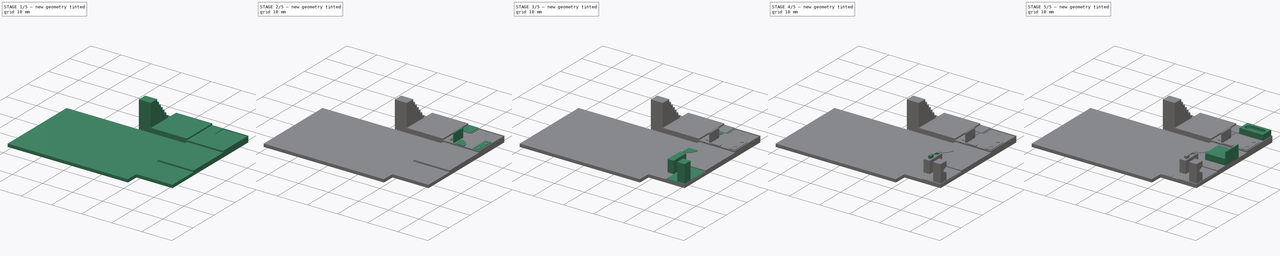
[diagram: build sequence overview — one tinted view per stage of 5, left to right]
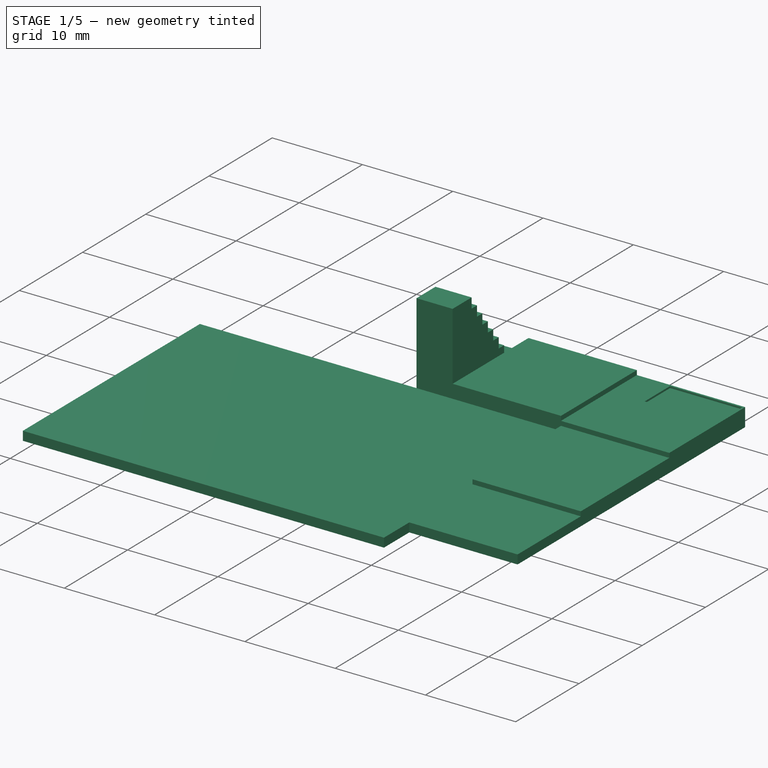
[diagram: stage 1 of 5 — iso view after this stage's code; geometry added in this stage tinted green]
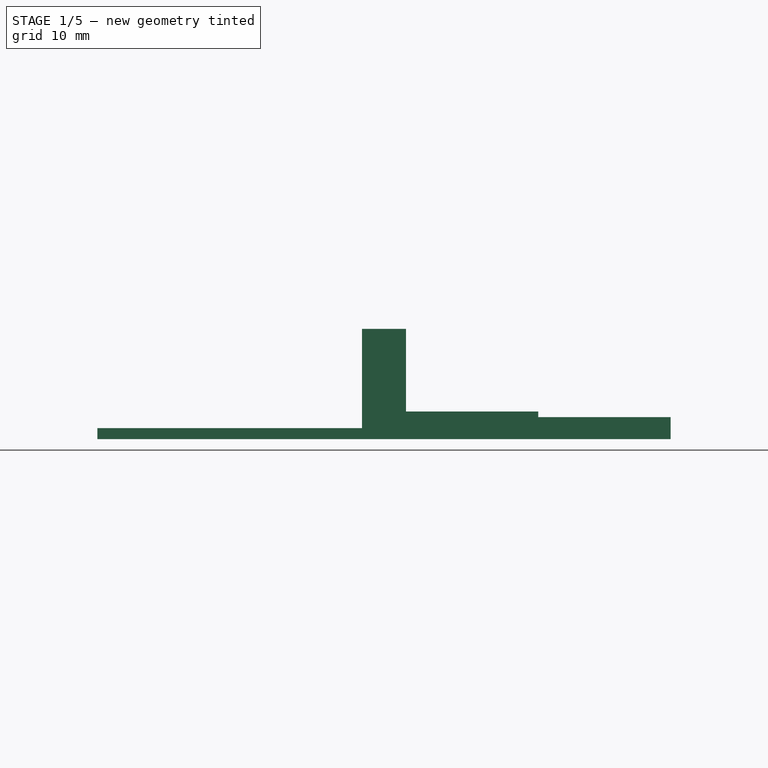
[diagram: stage 1 of 5 — front view after this stage's code; geometry added in this stage tinted green]
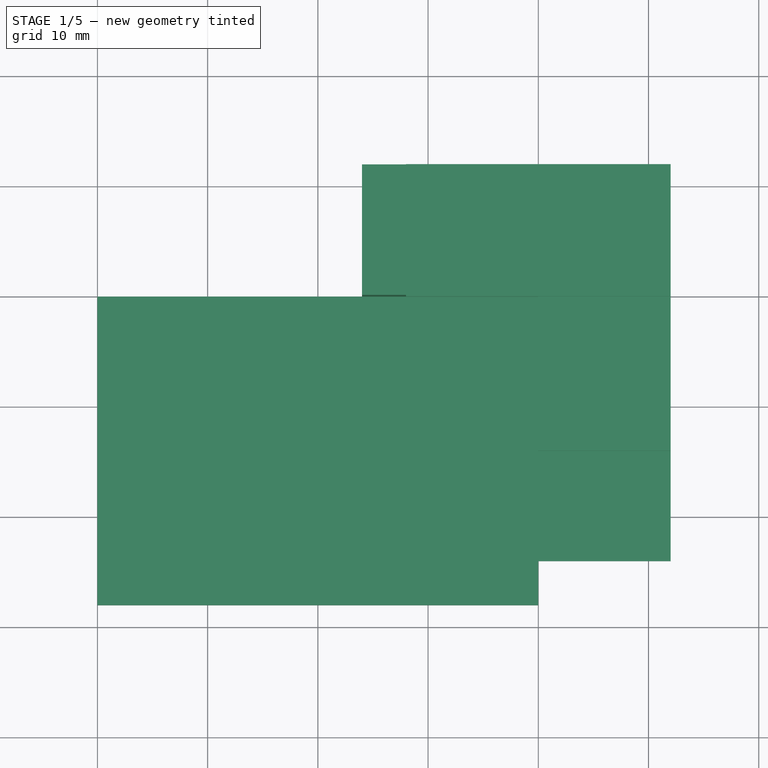
[diagram: stage 1 of 5 — top view after this stage's code; geometry added in this stage tinted green]
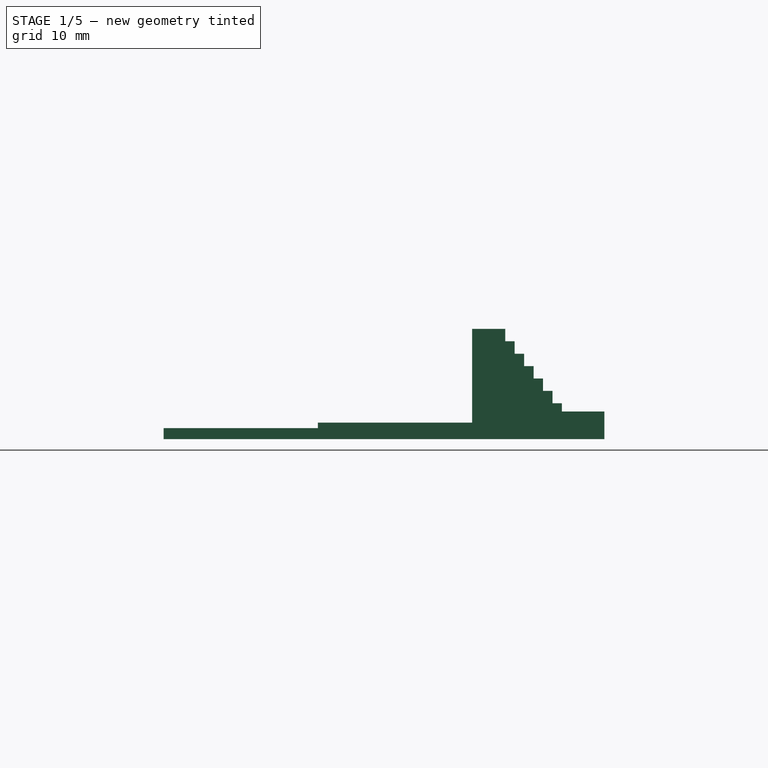
[diagram: stage 1 of 5 — right view after this stage's code; geometry added in this stage tinted green]
FCSTD DOCUMENT  (FreeCAD 0.19R)
Label: Addition1
License: All rights reserved
LicenseURL: http://en.wikipedia.org/wiki/All_rights_reserved
objects: Sketcher::SketchObject×28, PartDesign::Pad×21, PartDesign::Pocket×7, PartDesign::Fillet×1, PartDesign::Body×1
note: 87 computed .brp shape members not serialized (recipe doc carries the construction recipe); baked Part::Feature solids carry a one-line shape summary decoded from their .brp

FEATURE [Sketcher::SketchObject] Sketch
  FullyConstrained = true
  MapMode = 5
  Support = -> [XY_Plane]
  sketch-geometry (8):
    g0: LineSegment StartX=0 StartY=-28 StartZ=0 EndX=-40 EndY=-28 EndZ=0
    g1: LineSegment StartX=-40 StartY=-28 StartZ=0 EndX=-40 EndY=0 EndZ=0
    g2: LineSegment StartX=-40 StartY=0 StartZ=0 EndX=-16 EndY=0 EndZ=0
    g3: LineSegment StartX=-16 StartY=0 StartZ=0 EndX=-16 EndY=12 EndZ=0
    g4: LineSegment StartX=-16 StartY=12 StartZ=0 EndX=12 EndY=12 EndZ=0
    g5: LineSegment StartX=12 StartY=12 StartZ=0 EndX=12 EndY=-24 EndZ=0
    g6: LineSegment StartX=12 StartY=-24 StartZ=0 EndX=0 EndY=-24 EndZ=0
    g7: LineSegment StartX=0 StartY=-24 StartZ=0 EndX=0 EndY=-28 EndZ=0
  constraints (24):
    c: Coincident(g0,g1)
    c: Horizontal(g0)
    c: Vertical(g1)
    c: DistanceX(g1) = -40
    c: DistanceY(g0) = -28
    c: Coincident(g1,g2)
    c: PointOnObject(g2,g-1)
    c: Horizontal(g2)
    c: Coincident(g2,g3)
    c: Vertical(g3)
    c: Coincident(g3,g4)
    c: Horizontal(g4)
    c: Coincident(g4,g5)
    c: Vertical(g5)
    c: Coincident(g5,g6)
    c: PointOnObject(g6,g-2)
    c: Coincident(g6,g7)
    c: Coincident(g7,g0)
    c: Vertical(g7)
    c: Horizontal(g6)
    c: Distance(g6) = 12
    c: Distance(g3) = 12
    c: DistanceY(g6) = -24
    c: DistanceX(g2) = -16
FEATURE [PartDesign::Pad] Pad  label="foundation"
  Direction = (1,1,1)
  Length = 1
  Length2 = 100
  Profile = -> Sketch
  Type = 0
FEATURE [Sketcher::SketchObject] Sketch001
  ExternalGeometry = -> [Pad]
  FullyConstrained = true
  MapMode = 5
  Placement = pos=(0,0,1) rot=(0,0,1;0rad)
  Support = -> [Pad]
  sketch-geometry (4):
    g0: LineSegment StartX=12 StartY=12 StartZ=0 EndX=0 EndY=12 EndZ=0
    g1: LineSegment StartX=0 StartY=12 StartZ=0 EndX=0 EndY=0 EndZ=0
    g2: LineSegment StartX=0 StartY=0 StartZ=0 EndX=12 EndY=0 EndZ=0
    g3: LineSegment StartX=12 StartY=0 StartZ=0 EndX=12 EndY=12 EndZ=0
  constraints (11):
    c: Coincident(g0,g1)
    c: Coincident(g1,g2)
    c: Coincident(g2,g3)
    c: Coincident(g3,g0)
    c: Horizontal(g0)
    c: Horizontal(g2)
    c: Vertical(g1)
    c: Vertical(g3)
    c: Coincident(g0,g-4)
    c: PointOnObject(g1,g-1)
    c: Distance(g2) = 12
FEATURE [PartDesign::Pad] Pad001  label="addition1"
  BaseFeature = -> Pad
  Direction = (1,1,1)
  Length = 1
  Length2 = 100
  Profile = -> Sketch001
  Type = 0
FEATURE [Sketcher::SketchObject] Sketch002
  FullyConstrained = true
  MapMode = 5
  Placement = pos=(0,0,1) rot=(0,0,1;0rad)
  Support = -> [Pad001]
  sketch-geometry (4):
    g0: LineSegment StartX=0 StartY=0 StartZ=0 EndX=12 EndY=0 EndZ=0
    g1: LineSegment StartX=12 StartY=0 StartZ=0 EndX=12 EndY=-14 EndZ=0
    g2: LineSegment StartX=12 StartY=-14 StartZ=0 EndX=0 EndY=-14 EndZ=0
    g3: LineSegment StartX=0 StartY=-14 StartZ=0 EndX=0 EndY=0 EndZ=0
  constraints (11):
    c: Coincident(g0,g1)
    c: Coincident(g1,g2)
    c: Coincident(g2,g3)
    c: Coincident(g3,g0)
    c: Horizontal(g0)
    c: Horizontal(g2)
    c: Vertical(g1)
    c: Vertical(g3)
    c: Coincident(g0,g-1)
    c: Distance(g2) = 12
    c: Distance(g1) = 14
FEATURE [PartDesign::Pad] Pad002  label="Room"
  BaseFeature = -> Pad001
  Direction = (1,1,1)
  Length = 0.5
  Length2 = 100
  Profile = -> Sketch002
  Type = 0
FEATURE [Sketcher::SketchObject] Sketch003
  FullyConstrained = true
  MapMode = 5
  Placement = pos=(0,0,1) rot=(0,0,1;0rad)
  Support = -> [Pad002]
  sketch-geometry (4):
    g0: LineSegment StartX=-12 StartY=12 StartZ=0 EndX=0 EndY=12 EndZ=0
    g1: LineSegment StartX=0 StartY=12 StartZ=0 EndX=0 EndY=0 EndZ=0
    g2: LineSegment StartX=0 StartY=0 StartZ=0 EndX=-12 EndY=0 EndZ=0
    g3: LineSegment StartX=-12 StartY=0 StartZ=0 EndX=-12 EndY=12 EndZ=0
  constraints (12):
    c: Coincident(g0,g1)
    c: Coincident(g1,g2)
    c: Coincident(g2,g3)
    c: Coincident(g3,g0)
    c: Horizontal(g0)
    c: Horizontal(g2)
    c: Vertical(g1)
    c: Vertical(g3)
    c: DistanceX(g0) = -12
    c: DistanceX(g1) = 0
    c: DistanceY(g2) = 0
    c: Distance(g3) = 12
FEATURE [PartDesign::Pad] Pad003  label="office"
  BaseFeature = -> Pad002
  Direction = (1,1,1)
  Length = 1.5
  Length2 = 100
  Profile = -> Sketch003
  Type = 0
FEATURE [Sketcher::SketchObject] Sketch004
  FullyConstrained = true
  MapMode = 5
  Placement = pos=(-16,0,0) rot=(0.57735,-0.57735,-0.57735;2.0944rad)
  Support = -> [Pad003]
  sketch-geometry (20):
    g0: LineSegment StartX=-12 StartY=0 StartZ=0 EndX=-12 EndY=1 EndZ=0
    g1: LineSegment StartX=-12 StartY=1 StartZ=0 EndX=-9 EndY=1 EndZ=0
    g2: LineSegment StartX=-9 StartY=1 StartZ=0 EndX=-9 EndY=2.125 EndZ=0
    g3: LineSegment StartX=-9 StartY=2.125 StartZ=0 EndX=-8.14286 EndY=2.125 EndZ=0
    g4: LineSegment StartX=-8.14286 StartY=2.125 StartZ=0 EndX=-8.14286 EndY=3.25 EndZ=0
    g5: LineSegment StartX=-8.14286 StartY=3.25 StartZ=0 EndX=-7.28571 EndY=3.25 EndZ=0
    g6: LineSegment StartX=-7.28571 StartY=3.25 StartZ=0 EndX=-7.28571 EndY=4.375 EndZ=0
    g7: LineSegment StartX=-7.28571 StartY=4.375 StartZ=0 EndX=-6.42857 EndY=4.375 EndZ=0
    g8: LineSegment StartX=-6.42857 StartY=4.375 StartZ=0 EndX=-6.42857 EndY=5.5 EndZ=0
    g9: LineSegment StartX=-6.42857 StartY=5.5 StartZ=0 EndX=-5.57143 EndY=5.5 EndZ=0
    g10: LineSegment StartX=-5.57143 StartY=5.5 StartZ=0 EndX=-5.57143 EndY=6.625 EndZ=0
    g11: LineSegment StartX=-5.57143 StartY=6.625 StartZ=0 EndX=-4.71429 EndY=6.625 EndZ=0
    g12: LineSegment StartX=-4.71429 StartY=6.625 StartZ=0 EndX=-4.71429 EndY=7.75 EndZ=0
    g13: LineSegment StartX=-4.71429 StartY=7.75 StartZ=0 EndX=-3.85714 EndY=7.75 EndZ=0
    g14: LineSegment StartX=-3.85714 StartY=7.75 StartZ=0 EndX=-3.85714 EndY=8.875 EndZ=0
    g15: LineSegment StartX=-3.85714 StartY=8.875 StartZ=0 EndX=-3 EndY=8.875 EndZ=0
    g16: LineSegment StartX=-3 StartY=8.875 StartZ=0 EndX=-3 EndY=10 EndZ=0
    g17: LineSegment StartX=-3 StartY=10 StartZ=0 EndX=0 EndY=10 EndZ=0
    g18: LineSegment StartX=0 StartY=10 StartZ=0 EndX=0 EndY=0 EndZ=0
    g19: LineSegment StartX=0 StartY=0 StartZ=0 EndX=-12 EndY=0 EndZ=0
  constraints (59):
    c: PointOnObject(g0,g-1)
    c: Coincident(g0,g1)
    c: Coincident(g1,g2)
    c: Coincident(g2,g3)
    c: Coincident(g3,g4)
    c: Vertical(g4)
    c: Coincident(g4,g5)
    c: Horizontal(g5)
    c: Coincident(g5,g6)
    c: Coincident(g6,g7)
    c: Coincident(g7,g8)
    c: Coincident(g8,g9)
    c: Coincident(g9,g10)
    c: Coincident(g10,g11)
    c: Horizontal(g11)
    c: Coincident(g11,g12)
    c: Coincident(g12,g13)
    c: Coincident(g13,g14)
    c: Coincident(g14,g15)
    c: Coincident(g15,g16)
    c: Coincident(g16,g17)
    c: PointOnObject(g17,g-2)
    c: Coincident(g17,g18)
    c: Coincident(g18,g-1)
    c: Coincident(g18,g19)
    c: Coincident(g19,g0)
    c: DistanceY(g17) = 10
    c: Horizontal(g3)
    c: Horizontal(g7)
    c: Horizontal(g9)
    c: Horizontal(g13)
    c: Horizontal(g15)
    c: Vertical(g6)
    c: Vertical(g8)
    c: Vertical(g12)
    c: Vertical(g10)
    c: Vertical(g14)
    c: Vertical(g16)
    c: Vertical(g2)
    c: Equal(g2,g4)
    c: Equal(g4,g6)
    c: Equal(g6,g8)
    c: Equal(g8,g10)
    c: Equal(g10,g12)
    c: Equal(g12,g14)
    c: Equal(g14,g16)
    c: Distance(g17) = 3
    c: Equal(g3,g5)
    c: Equal(g5,g7)
    c: Equal(g7,g9)
    c: Equal(g9,g11)
    c: Equal(g11,g13)
    c: Equal(g13,g15)
    c: Horizontal(g1)
    c: Horizontal(g17)
    c: Distance(g1) = 3
    c: Vertical(g0)
    c: Distance(g0) = 1
    c: DistanceX(g0) = -12
FEATURE [PartDesign::Pad] Pad004
  BaseFeature = -> Pad003
  Direction = (1,1,1)
  Length = 4
  Length2 = 100
  Profile = -> Sketch004
  Reversed = true
  Type = 0
FEATURE [Sketcher::SketchObject] Sketch005
  FullyConstrained = false
  MapMode = 5
  Placement = pos=(0,0,2) rot=(0,0,1;0rad)
  Support = -> [Pad004]
  sketch-geometry (4):
    g0: LineSegment StartX=3.82447 StartY=11.7945 StartZ=0 EndX=11.8245 EndY=11.7945 EndZ=0
    g1: LineSegment StartX=11.8245 StartY=11.7945 StartZ=0 EndX=11.8245 EndY=7.79448 EndZ=0
    g2: LineSegment StartX=11.8245 StartY=7.79448 StartZ=0 EndX=3.82447 EndY=7.79448 EndZ=0
    g3: LineSegment StartX=3.82447 StartY=7.79448 StartZ=0 EndX=3.82447 EndY=11.7945 EndZ=0
  constraints (10):
    c: Coincident(g0,g1)
    c: Coincident(g1,g2)
    c: Coincident(g2,g3)
    c: Coincident(g3,g0)
    c: Horizontal(g0)
    c: Horizontal(g2)
    c: Vertical(g1)
    c: Vertical(g3)
    c: Distance(g0) = 8
    c: Distance(g3) = 4
FEATURE [PartDesign::Pocket] Pocket
  BaseFeature = -> Pad004
  Length = 0.2
  Length2 = 100
  Profile = -> Sketch005
  Type = 0
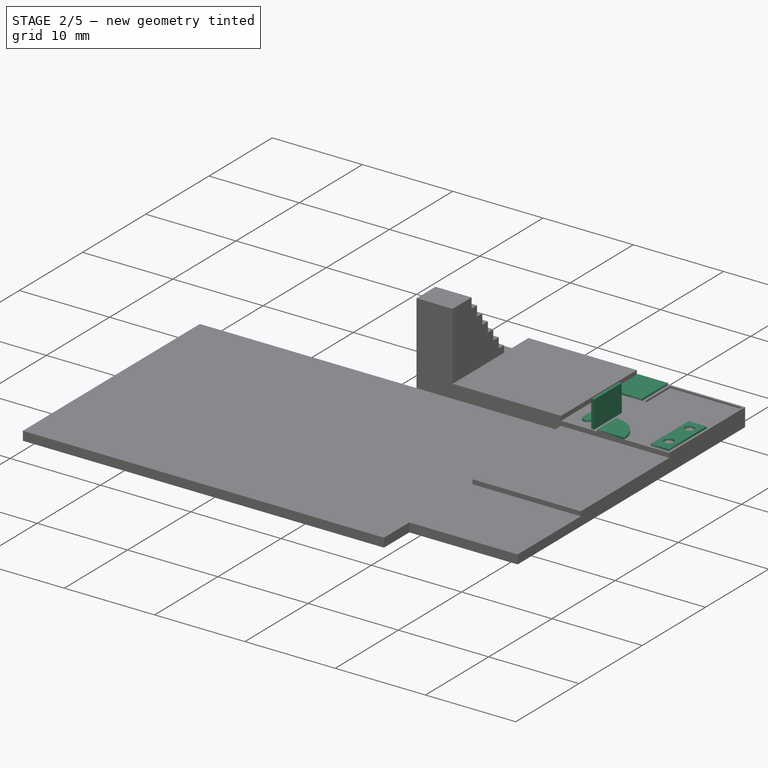
[diagram: stage 2 of 5 — iso view after this stage's code; geometry added in this stage tinted green]
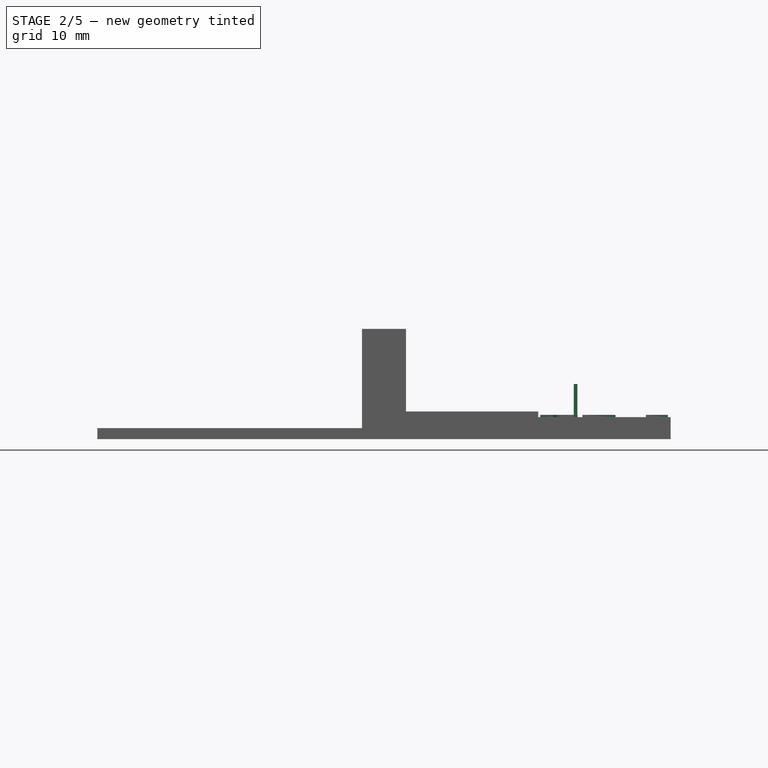
[diagram: stage 2 of 5 — front view after this stage's code; geometry added in this stage tinted green]
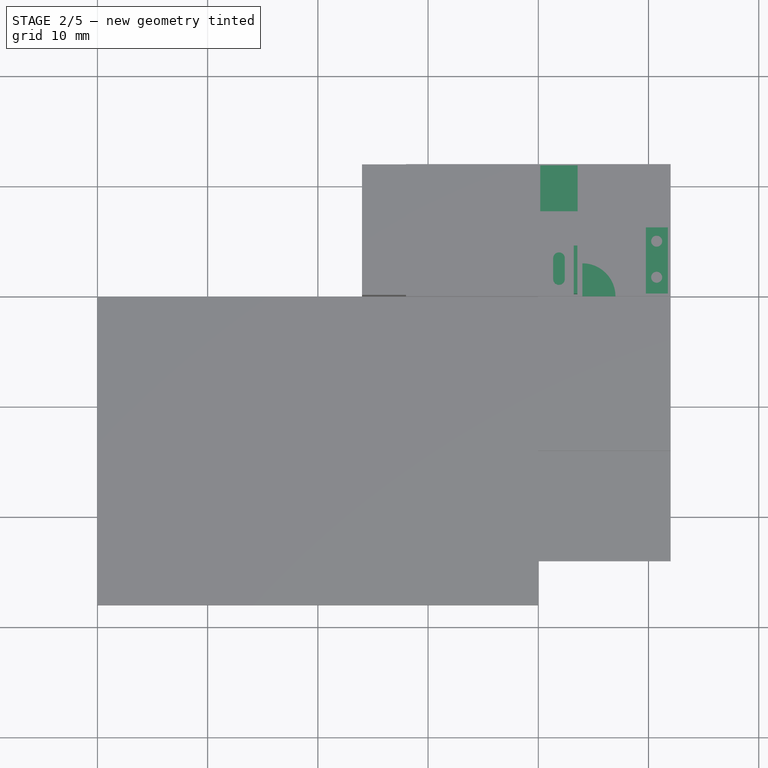
[diagram: stage 2 of 5 — top view after this stage's code; geometry added in this stage tinted green]
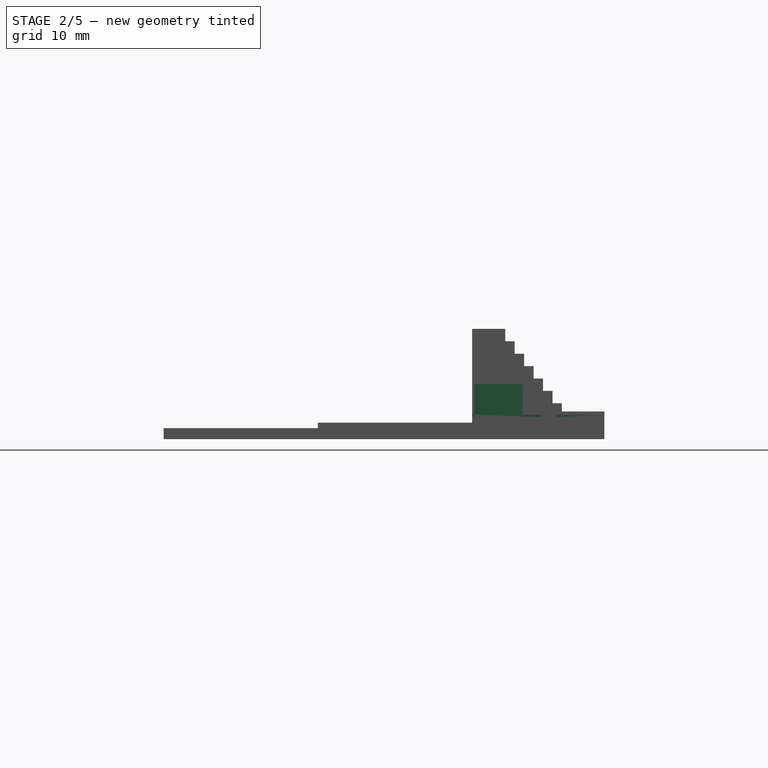
[diagram: stage 2 of 5 — right view after this stage's code; geometry added in this stage tinted green]
FEATURE [Sketcher::SketchObject] Sketch006
  FullyConstrained = true
  MapMode = 5
  Placement = pos=(0,0,2) rot=(0,0,1;0rad)
  Support = -> [Pocket]
  sketch-geometry (3):
    g0: ArcOfCircle CenterX=4 CenterY=0 CenterZ=0 NormalX=0 NormalY=0 NormalZ=1 AngleXU=0 Radius=3 StartAngle=0 EndAngle=1.5708
    g1: LineSegment StartX=4 StartY=3 StartZ=0 EndX=4 EndY=0 EndZ=0
    g2: LineSegment StartX=4 StartY=0 StartZ=0 EndX=7 EndY=0 EndZ=0
  constraints (9):
    c: PointOnObject(g0,g-1)
    c: Coincident(g0,g1)
    c: Coincident(g1,g2)
    c: Coincident(g2,g0)
    c: Coincident(g1,g0)
    c: Vertical(g1)
    c: Horizontal(g2)
    c: DistanceX(g0) = 4
    c: Distance(g2) = 3
FEATURE [PartDesign::Pad] Pad005
  BaseFeature = -> Pocket
  Direction = (1,1,1)
  Length = 0.2
  Length2 = 100
  Profile = -> Sketch006
  Type = 0
FEATURE [Sketcher::SketchObject] Sketch007
  FullyConstrained = false
  MapMode = 5
  Placement = pos=(0,0,2) rot=(0,0,1;0rad)
  Support = -> [Pad005]
  sketch-geometry (4):
    g0: LineSegment StartX=11.7545 StartY=6.26146 StartZ=0 EndX=9.75453 EndY=6.26146 EndZ=0
    g1: LineSegment StartX=9.75453 StartY=6.26146 StartZ=0 EndX=9.75453 EndY=0.261456 EndZ=0
    g2: LineSegment StartX=9.75453 StartY=0.261456 StartZ=0 EndX=11.7545 EndY=0.261456 EndZ=0
    g3: LineSegment StartX=11.7545 StartY=0.261456 StartZ=0 EndX=11.7545 EndY=6.26146 EndZ=0
  constraints (10):
    c: Coincident(g0,g1)
    c: Coincident(g1,g2)
    c: Coincident(g2,g3)
    c: Coincident(g3,g0)
    c: Horizontal(g0)
    c: Horizontal(g2)
    c: Vertical(g1)
    c: Vertical(g3)
    c: Distance(g2) = 2
    c: Distance(g1) = 6
FEATURE [PartDesign::Pad] Pad006
  BaseFeature = -> Pad005
  Direction = (1,1,1)
  Length = 0.2
  Length2 = 100
  Profile = -> Sketch007
  Type = 0
FEATURE [Sketcher::SketchObject] Sketch008
  FullyConstrained = false
  MapMode = 5
  Placement = pos=(0,0,2.2) rot=(0,0,1;0rad)
  Support = -> [Pad006]
  sketch-geometry (2):
    g0: Circle CenterX=10.7393 CenterY=5.01093 CenterZ=0 NormalX=0 NormalY=0 NormalZ=1 AngleXU=0 Radius=0.5
    g1: Circle CenterX=10.7393 CenterY=1.73926 CenterZ=0 NormalX=0 NormalY=0 NormalZ=1 AngleXU=0 Radius=0.5
  constraints (2):
    c: Diameter(g1) = 1
    c: Equal(g1,g0)
FEATURE [PartDesign::Pocket] Pocket001
  BaseFeature = -> Pad006
  Length = 0.2
  Length2 = 100
  Profile = -> Sketch008
  Type = 0
FEATURE [Sketcher::SketchObject] Sketch009
  FullyConstrained = false
  MapMode = 5
  Placement = pos=(0,0,2) rot=(0,0,1;0rad)
  Support = -> [Pocket001]
  sketch-geometry (4):
    g0: LineSegment StartX=0.180958 StartY=11.884 StartZ=0 EndX=3.56448 EndY=11.884 EndZ=0
    g1: LineSegment StartX=3.56448 StartY=11.884 StartZ=0 EndX=3.56448 EndY=7.72507 EndZ=0
    g2: LineSegment StartX=3.56448 StartY=7.72507 StartZ=0 EndX=0.180958 EndY=7.72507 EndZ=0
    g3: LineSegment StartX=0.180958 StartY=7.72507 StartZ=0 EndX=0.180958 EndY=11.884 EndZ=0
  constraints (8):
    c: Coincident(g0,g1)
    c: Coincident(g1,g2)
    c: Coincident(g2,g3)
    c: Coincident(g3,g0)
    c: Horizontal(g0)
    c: Horizontal(g2)
    c: Vertical(g1)
    c: Vertical(g3)
FEATURE [PartDesign::Pad] Pad007
  BaseFeature = -> Pocket001
  Direction = (1,1,1)
  Length = 0.2
  Length2 = 100
  Profile = -> Sketch009
  Type = 0
FEATURE [Sketcher::SketchObject] Sketch010
  FullyConstrained = false
  MapMode = 5
  Placement = pos=(0,0,2) rot=(0,0,1;0rad)
  Support = -> [Pad007]
  sketch-geometry (4):
    g0: ArcOfCircle CenterX=1.87619 CenterY=3.46493 CenterZ=0 NormalX=0 NormalY=0 NormalZ=1 AngleXU=0 Radius=0.525792 StartAngle=1e-16 EndAngle=3.14159
    g1: ArcOfCircle CenterX=1.87619 CenterY=1.57207 CenterZ=0 NormalX=0 NormalY=0 NormalZ=1 AngleXU=0 Radius=0.525792 StartAngle=3.14159 EndAngle=6.28319
    g2: LineSegment StartX=1.3504 StartY=3.46493 StartZ=0 EndX=1.3504 EndY=1.57207 EndZ=0
    g3: LineSegment StartX=2.40198 StartY=3.46493 StartZ=0 EndX=2.40198 EndY=1.57207 EndZ=0
  constraints (6):
    c: Tangent(g0,g3) = 1.5708
    c: Tangent(g0,g2) = -1.5708
    c: Tangent(g2,g1) = -1.5708
    c: Tangent(g3,g1) = 1.5708
    c: Vertical(g2)
    c: Equal(g0,g1)
FEATURE [PartDesign::Pad] Pad008
  BaseFeature = -> Pad007
  Direction = (1,1,1)
  Length = 0.2
  Length2 = 100
  Profile = -> Sketch010
  Type = 0
FEATURE [Sketcher::SketchObject] Sketch011
  FullyConstrained = false
  MapMode = 5
  Placement = pos=(0,0,2) rot=(0,0,1;0rad)
  Support = -> [Pad008]
  sketch-geometry (4):
    g0: LineSegment StartX=3.21932 StartY=4.5635 StartZ=0 EndX=3.54042 EndY=4.5635 EndZ=0
    g1: LineSegment StartX=3.54042 StartY=4.5635 StartZ=0 EndX=3.54042 EndY=0.196498 EndZ=0
    g2: LineSegment StartX=3.54042 StartY=0.196498 StartZ=0 EndX=3.21932 EndY=0.196498 EndZ=0
    g3: LineSegment StartX=3.21932 StartY=0.196498 StartZ=0 EndX=3.21932 EndY=4.5635 EndZ=0
  constraints (8):
    c: Coincident(g0,g1)
    c: Coincident(g1,g2)
    c: Coincident(g2,g3)
    c: Coincident(g3,g0)
    c: Horizontal(g0)
    c: Horizontal(g2)
    c: Vertical(g1)
    c: Vertical(g3)
FEATURE [PartDesign::Pad] Pad009
  BaseFeature = -> Pad008
  Direction = (1,1,1)
  Length = 3
  Length2 = 100
  Profile = -> Sketch011
  Type = 0
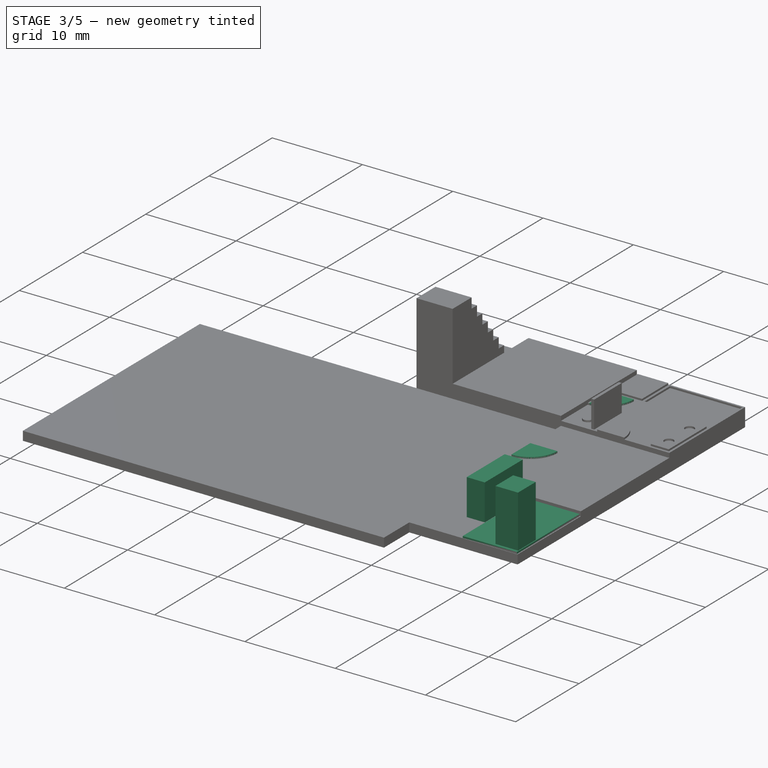
[diagram: stage 3 of 5 — iso view after this stage's code; geometry added in this stage tinted green]
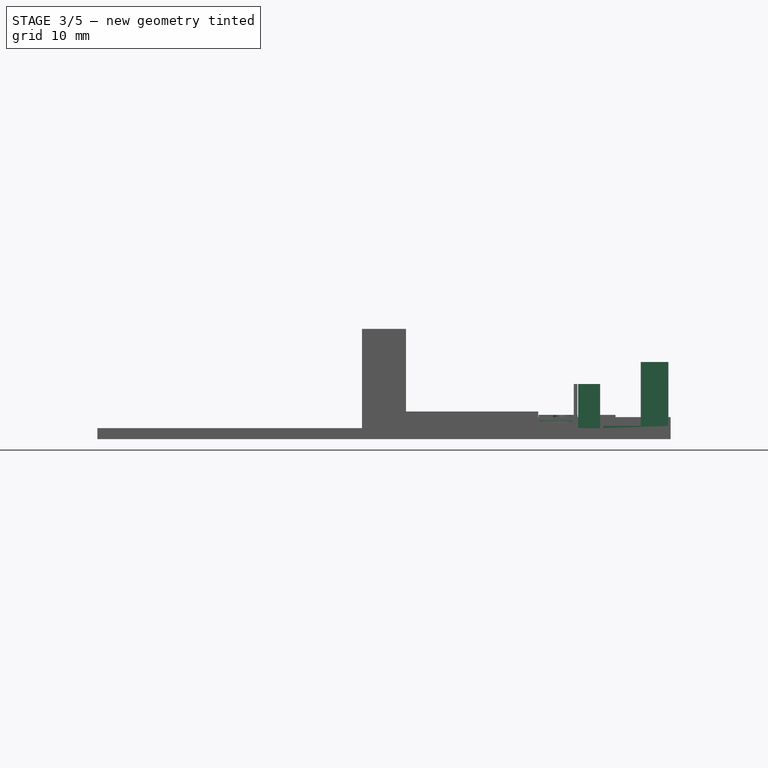
[diagram: stage 3 of 5 — front view after this stage's code; geometry added in this stage tinted green]
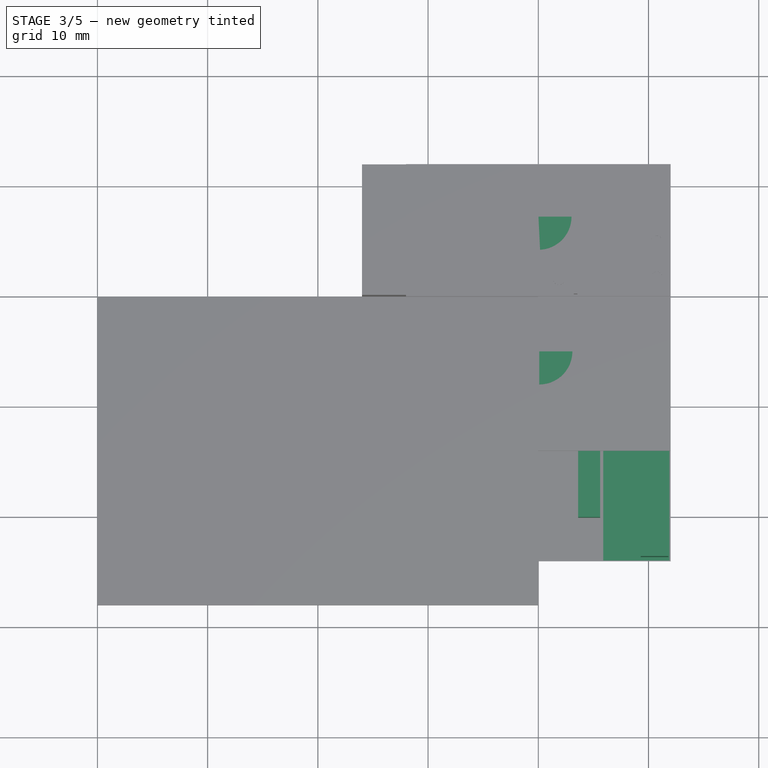
[diagram: stage 3 of 5 — top view after this stage's code; geometry added in this stage tinted green]
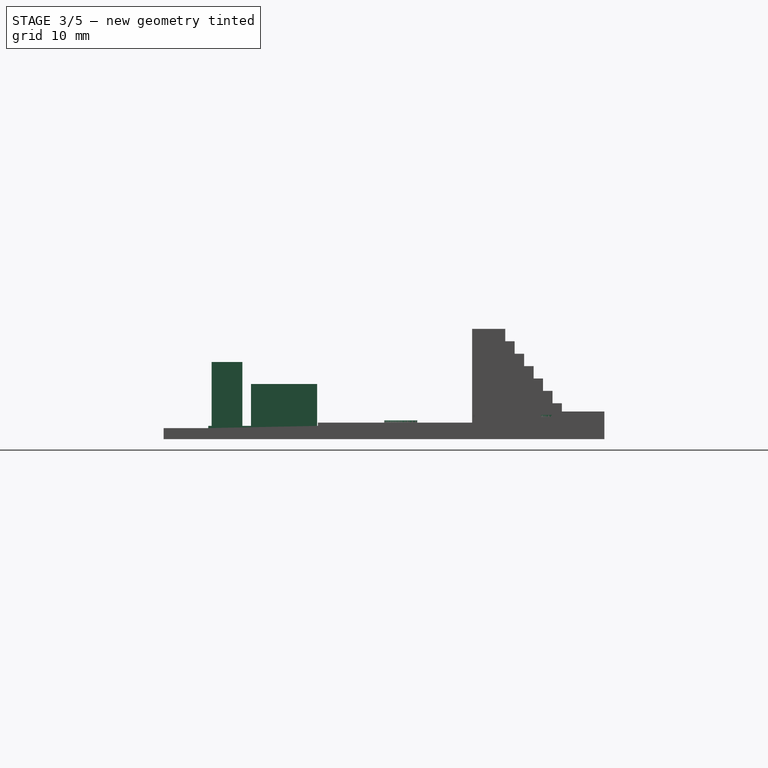
[diagram: stage 3 of 5 — right view after this stage's code; geometry added in this stage tinted green]
FEATURE [Sketcher::SketchObject] Sketch012
  FullyConstrained = false
  MapMode = 5
  Placement = pos=(0,0,2) rot=(0,0,1;0rad)
  Support = -> [Pad009]
  sketch-geometry (3):
    g0: ArcOfCircle CenterX=0.0127659 CenterY=7.23281 CenterZ=0 NormalX=0 NormalY=0 NormalZ=1 AngleXU=0 Radius=3 StartAngle=4.71239 EndAngle=6.28319
    g1: LineSegment StartX=3.01277 StartY=7.23281 StartZ=0 EndX=0.0127659 EndY=7.23281 EndZ=0
    g2: LineSegment StartX=0.0127659 StartY=7.23281 StartZ=0 EndX=0.0127659 EndY=4.23281 EndZ=0
  constraints (7):
    c: Coincident(g1,g0)
    c: Horizontal(g1)
    c: Coincident(g1,g2)
    c: Coincident(g2,g0)
    c: Vertical(g2)
    c: Distance(g2) = 3
    c: Coincident(g0,g1)
FEATURE [PartDesign::Pad] Pad010  label="bathdoor1"
  BaseFeature = -> Pad009
  Direction = (1,1,1)
  Length = 0.2
  Length2 = 100
  Profile = -> Sketch012
  Type = 0
FEATURE [Sketcher::SketchObject] Sketch013
  FullyConstrained = false
  MapMode = 5
  Placement = pos=(0,0,1) rot=(0,0,1;0rad)
  Support = -> [Pad010]
  sketch-geometry (4):
    g0: LineSegment StartX=5.61299 StartY=-14.067 StartZ=0 EndX=3.61299 EndY=-14.067 EndZ=0
    g1: LineSegment StartX=3.61299 StartY=-14.067 StartZ=0 EndX=3.61299 EndY=-20.067 EndZ=0
    g2: LineSegment StartX=3.61299 StartY=-20.067 StartZ=0 EndX=5.61299 EndY=-20.067 EndZ=0
    g3: LineSegment StartX=5.61299 StartY=-20.067 StartZ=0 EndX=5.61299 EndY=-14.067 EndZ=0
  constraints (10):
    c: Coincident(g0,g1)
    c: Coincident(g1,g2)
    c: Coincident(g2,g3)
    c: Coincident(g3,g0)
    c: Horizontal(g0)
    c: Horizontal(g2)
    c: Vertical(g1)
    c: Vertical(g3)
    c: Distance(g2) = 2
    c: Distance(g1) = 6
FEATURE [PartDesign::Pad] Pad011
  BaseFeature = -> Pad010
  Direction = (1,1,1)
  Length = 4
  Length2 = 100
  Profile = -> Sketch013
  Type = 0
FEATURE [Sketcher::SketchObject] Sketch014
  FullyConstrained = false
  MapMode = 5
  Placement = pos=(0,0,1) rot=(0,0,1;0rad)
  Support = -> [Pad011]
  sketch-geometry (4):
    g0: LineSegment StartX=5.888 StartY=-13.9493 StartZ=0 EndX=11.888 EndY=-13.9493 EndZ=0
    g1: LineSegment StartX=11.888 StartY=-13.9493 StartZ=0 EndX=11.888 EndY=-23.9493 EndZ=0
    g2: LineSegment StartX=11.888 StartY=-23.9493 StartZ=0 EndX=5.888 EndY=-23.9493 EndZ=0
    g3: LineSegment StartX=5.888 StartY=-23.9493 StartZ=0 EndX=5.888 EndY=-13.9493 EndZ=0
  constraints (10):
    c: Coincident(g0,g1)
    c: Coincident(g1,g2)
    c: Coincident(g2,g3)
    c: Coincident(g3,g0)
    c: Horizontal(g0)
    c: Horizontal(g2)
    c: Vertical(g1)
    c: Vertical(g3)
    c: Distance(g3) = 10
    c: Distance(g2) = 6
FEATURE [PartDesign::Pad] Pad012  label="closet"
  BaseFeature = -> Pad011
  Direction = (1,1,1)
  Length = 0.2
  Length2 = 100
  Profile = -> Sketch014
  Type = 0
FEATURE [Sketcher::SketchObject] Sketch015
  FullyConstrained = false
  MapMode = 5
  Placement = pos=(0,0,1.5) rot=(0,0,1;0rad)
  Support = -> [Pad012]
  sketch-geometry (3):
    g0: ArcOfCircle CenterX=0.0906927 CenterY=-4.98154 CenterZ=0 NormalX=0 NormalY=0 NormalZ=1 AngleXU=0 Radius=3 StartAngle=4.71239 EndAngle=6.28319
    g1: LineSegment StartX=3.09069 StartY=-4.98154 StartZ=0 EndX=0.0906927 EndY=-4.98154 EndZ=0
    g2: LineSegment StartX=0.0906927 StartY=-4.98154 StartZ=0 EndX=0.0906927 EndY=-7.98154 EndZ=0
  constraints (7):
    c: Coincident(g0,g1)
    c: Coincident(g1,g2)
    c: Vertical(g2)
    c: Coincident(g0,g2)
    c: Coincident(g1,g0)
    c: Perpendicular(g1,g2)
    c: Distance(g2) = 3
FEATURE [PartDesign::Pad] Pad013  label="brdoor"
  BaseFeature = -> Pad012
  Direction = (1,1,1)
  Length = 0.2
  Length2 = 100
  Profile = -> Sketch015
  Type = 0
FEATURE [Sketcher::SketchObject] Sketch016
  FullyConstrained = false
  MapMode = 5
  Placement = pos=(0,0,1) rot=(0,0,1;0rad)
  Support = -> [Pad013]
  sketch-geometry (4):
    g0: LineSegment StartX=9.29839 StartY=-20.844 StartZ=0 EndX=11.7984 EndY=-20.844 EndZ=0
    g1: LineSegment StartX=11.7984 StartY=-20.844 StartZ=0 EndX=11.7984 EndY=-23.644 EndZ=0
    g2: LineSegment StartX=11.7984 StartY=-23.644 StartZ=0 EndX=9.29839 EndY=-23.644 EndZ=0
    g3: LineSegment StartX=9.29839 StartY=-23.644 StartZ=0 EndX=9.29839 EndY=-20.844 EndZ=0
  constraints (10):
    c: Coincident(g0,g1)
    c: Coincident(g1,g2)
    c: Coincident(g2,g3)
    c: Coincident(g3,g0)
    c: Horizontal(g0)
    c: Horizontal(g2)
    c: Vertical(g1)
    c: Vertical(g3)
    c: Distance(g0) = 2.5
    c: Distance(g1) = 2.8
FEATURE [PartDesign::Pad] Pad014
  BaseFeature = -> Pad013
  Direction = (1,1,1)
  Length = 6
  Length2 = 100
  Profile = -> Sketch016
  Type = 0
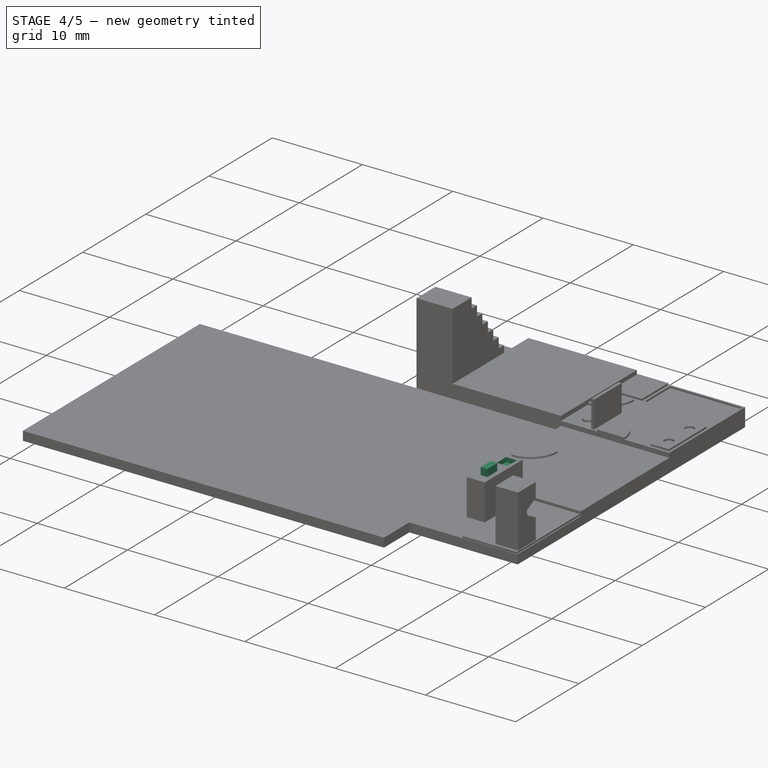
[diagram: stage 4 of 5 — iso view after this stage's code; geometry added in this stage tinted green]
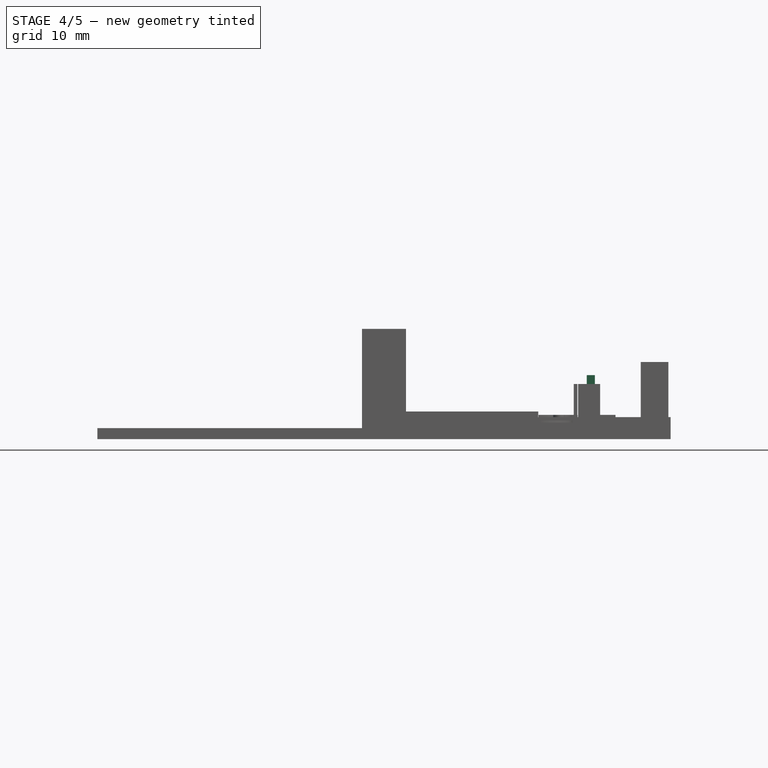
[diagram: stage 4 of 5 — front view after this stage's code; geometry added in this stage tinted green]
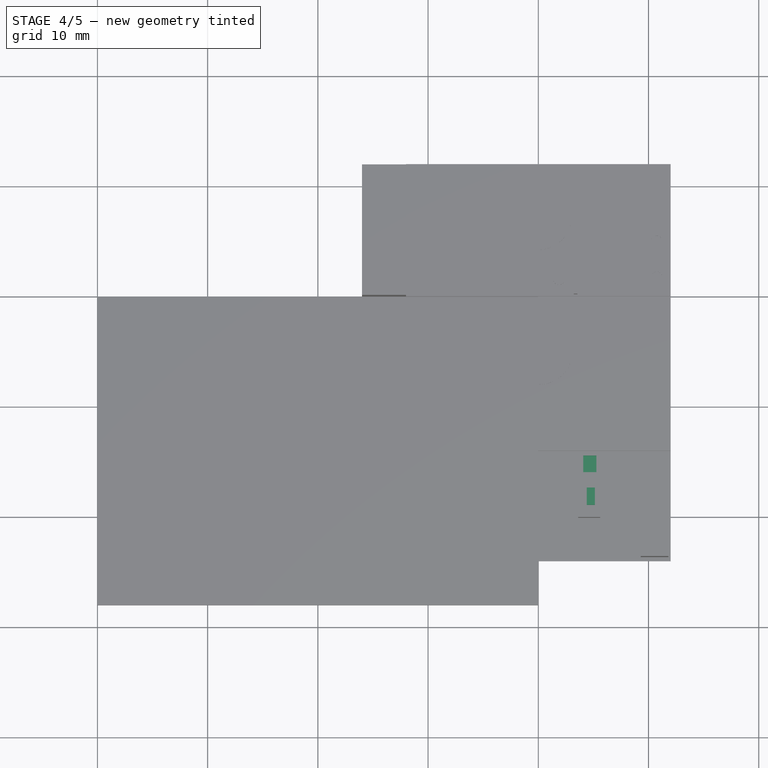
[diagram: stage 4 of 5 — top view after this stage's code; geometry added in this stage tinted green]
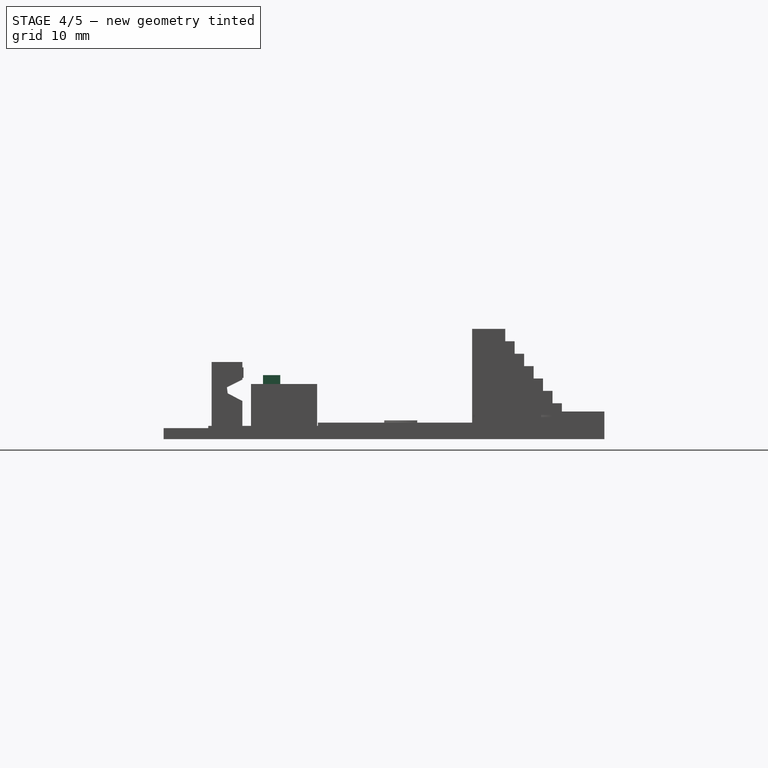
[diagram: stage 4 of 5 — right view after this stage's code; geometry added in this stage tinted green]
FEATURE [Sketcher::SketchObject] Sketch017
  FullyConstrained = false
  MapMode = 5
  Placement = pos=(0,0,1) rot=(0,0,1;0rad)
  Support = -> [Pad014]
  sketch-geometry (3):
    g0: ArcOfCircle CenterX=0.631907 CenterY=-23.9006 CenterZ=0 NormalX=0 NormalY=0 NormalZ=1 AngleXU=0 Radius=3 StartAngle=0.00264517 EndAngle=1.5708
    g1: LineSegment StartX=3.6319 StartY=-23.8927 StartZ=0 EndX=0.631907 EndY=-23.9006 EndZ=0
    g2: LineSegment StartX=0.631907 StartY=-23.9006 StartZ=0 EndX=0.631907 EndY=-20.9006 EndZ=0
  constraints (6):
    c: Coincident(g0,g1)
    c: Coincident(g1,g2)
    c: Coincident(g2,g0)
    c: Coincident(g0,g1)
    c: Vertical(g2)
    c: Distance(g1) = 3
FEATURE [Sketcher::SketchObject] Sketch018
  FullyConstrained = false
  MapMode = 5
  Placement = pos=(0,0,5) rot=(0,0,1;0rad)
  Support = -> [Pad014]
  sketch-geometry (4):
    g0: LineSegment StartX=4.07407 StartY=-14.4917 StartZ=0 EndX=5.27407 EndY=-14.4917 EndZ=0
    g1: LineSegment StartX=5.27407 StartY=-14.4917 StartZ=0 EndX=5.27407 EndY=-15.9917 EndZ=0
    g2: LineSegment StartX=5.27407 StartY=-15.9917 StartZ=0 EndX=4.07407 EndY=-15.9917 EndZ=0
    g3: LineSegment StartX=4.07407 StartY=-15.9917 StartZ=0 EndX=4.07407 EndY=-14.4917 EndZ=0
  constraints (10):
    c: Coincident(g0,g1)
    c: Coincident(g1,g2)
    c: Coincident(g2,g3)
    c: Coincident(g3,g0)
    c: Horizontal(g0)
    c: Horizontal(g2)
    c: Vertical(g1)
    c: Vertical(g3)
    c: Distance(g0) = 1.2
    c: Distance(g1) = 1.5
FEATURE [PartDesign::Pocket] Pocket002
  BaseFeature = -> Pad014
  Length = 0.5
  Length2 = 100
  Profile = -> Sketch018
  Type = 0
FEATURE [Sketcher::SketchObject] Sketch019
  FullyConstrained = false
  MapMode = 5
  Placement = pos=(3.61299,0,0) rot=(0.57735,-0.57735,-0.57735;2.0944rad)
  Support = -> [Pocket002]
  sketch-geometry (4):
    g0: LineSegment StartX=17.8171 StartY=3.94481 StartZ=0 EndX=19.8171 EndY=3.94481 EndZ=0
    g1: LineSegment StartX=19.8171 StartY=3.94481 StartZ=0 EndX=19.8171 EndY=1.14481 EndZ=0
    g2: LineSegment StartX=19.8171 StartY=1.14481 StartZ=0 EndX=17.8171 EndY=1.14481 EndZ=0
    g3: LineSegment StartX=17.8171 StartY=1.14481 StartZ=0 EndX=17.8171 EndY=3.94481 EndZ=0
  constraints (10):
    c: Coincident(g0,g1)
    c: Coincident(g1,g2)
    c: Coincident(g2,g3)
    c: Coincident(g3,g0)
    c: Horizontal(g0)
    c: Horizontal(g2)
    c: Vertical(g1)
    c: Vertical(g3)
    c: Distance(g0) = 2
    c: Distance(g3) = 2.8
FEATURE [PartDesign::Pocket] Pocket003
  BaseFeature = -> Pocket002
  Length = 0.1
  Length2 = 100
  Profile = -> Sketch019
  Type = 0
FEATURE [Sketcher::SketchObject] Sketch020
  FullyConstrained = false
  MapMode = 5
  Placement = pos=(0,0,5) rot=(0,0,1;0rad)
  Support = -> [Pocket003]
  sketch-geometry (4):
    g0: LineSegment StartX=4.39943 StartY=-17.41 StartZ=0 EndX=5.13797 EndY=-17.41 EndZ=0
    g1: LineSegment StartX=5.13797 StartY=-17.41 StartZ=0 EndX=5.13797 EndY=-18.9834 EndZ=0
    g2: LineSegment StartX=5.13797 StartY=-18.9834 StartZ=0 EndX=4.39943 EndY=-18.9834 EndZ=0
    g3: LineSegment StartX=4.39943 StartY=-18.9834 StartZ=0 EndX=4.39943 EndY=-17.41 EndZ=0
  constraints (8):
    c: Coincident(g0,g1)
    c: Coincident(g1,g2)
    c: Coincident(g2,g3)
    c: Coincident(g3,g0)
    c: Horizontal(g0)
    c: Horizontal(g2)
    c: Vertical(g1)
    c: Vertical(g3)
FEATURE [PartDesign::Pad] Pad015
  BaseFeature = -> Pocket003
  Direction = (1,1,1)
  Length = 0.8
  Length2 = 100
  Profile = -> Sketch020
  Type = 0
FEATURE [Sketcher::SketchObject] Sketch021
  FullyConstrained = false
  MapMode = 5
  Placement = pos=(0,-20.844,0) rot=(0,0.707107,0.707107;3.14159rad)
  Support = -> [Pad015]
  sketch-geometry (4):
    g0: LineSegment StartX=-11.2869 StartY=6.50623 StartZ=0 EndX=-9.76205 EndY=6.50623 EndZ=0
    g1: LineSegment StartX=-9.76205 StartY=6.50623 StartZ=0 EndX=-9.76205 EndY=5.5598 EndZ=0
    g2: LineSegment StartX=-9.76205 StartY=5.5598 StartZ=0 EndX=-11.2869 EndY=5.5598 EndZ=0
    g3: LineSegment StartX=-11.2869 StartY=5.5598 StartZ=0 EndX=-11.2869 EndY=6.50623 EndZ=0
  constraints (8):
    c: Coincident(g0,g1)
    c: Coincident(g1,g2)
    c: Coincident(g2,g3)
    c: Coincident(g3,g0)
    c: Horizontal(g0)
    c: Horizontal(g2)
    c: Vertical(g1)
    c: Vertical(g3)
FEATURE [PartDesign::Pad] Pad016
  BaseFeature = -> Pad015
  Direction = (1,1,1)
  Length = 0.1
  Length2 = 100
  Profile = -> Sketch021
  Type = 0
FEATURE [Sketcher::SketchObject] Sketch022
  FullyConstrained = false
  MapMode = 5
  Placement = pos=(11.7984,0,0) rot=(0.57735,0.57735,0.57735;2.0944rad)
  Support = -> [Pad016]
  sketch-geometry (4):
    g0: LineSegment StartX=-20.5273 StartY=3.29208 StartZ=0 EndX=-22.1839 EndY=4.15558 EndZ=0
    g1: LineSegment StartX=-22.1839 StartY=4.15558 StartZ=0 EndX=-22.2543 EndY=4.70188 EndZ=0
    g2: LineSegment StartX=-22.2543 StartY=4.70188 StartZ=0 EndX=-20.5273 EndY=5.56539 EndZ=0
    g3: LineSegment StartX=-20.5273 StartY=5.56539 StartZ=0 EndX=-20.5273 EndY=3.29208 EndZ=0
  constraints (5):
    c: Coincident(g0,g1)
    c: Coincident(g1,g2)
    c: Coincident(g2,g3)
    c: Coincident(g3,g0)
    c: Vertical(g3)
FEATURE [PartDesign::Pocket] Pocket004
  BaseFeature = -> Pad016
  Length = 5
  Length2 = 100
  Profile = -> Sketch022
  Type = 0
FEATURE [Sketcher::SketchObject] Sketch023
  FullyConstrained = false
  MapMode = 5
  Placement = pos=(0,-3.03664,-5.8254) rot=(-1,0,0;0.480523rad)
  Support = -> [Pocket004]
  sketch-geometry (4):
    g0: LineSegment StartX=9.72227 StartY=-20.1909 StartZ=0 EndX=11.4682 EndY=-20.1909 EndZ=0
    g1: LineSegment StartX=11.4682 StartY=-20.1909 StartZ=0 EndX=11.4682 EndY=-20.9036 EndZ=0
    g2: LineSegment StartX=11.4682 StartY=-20.9036 StartZ=0 EndX=9.72227 EndY=-20.9036 EndZ=0
    g3: LineSegment StartX=9.72227 StartY=-20.9036 StartZ=0 EndX=9.72227 EndY=-20.1909 EndZ=0
  constraints (8):
    c: Coincident(g0,g1)
    c: Coincident(g1,g2)
    c: Coincident(g2,g3)
    c: Coincident(g3,g0)
    c: Horizontal(g0)
    c: Horizontal(g2)
    c: Vertical(g1)
    c: Vertical(g3)
FEATURE [PartDesign::Pocket] Pocket005
  BaseFeature = -> Pocket004
  Length = 0.1
  Length2 = 100
  Profile = -> Sketch023
  Type = 0
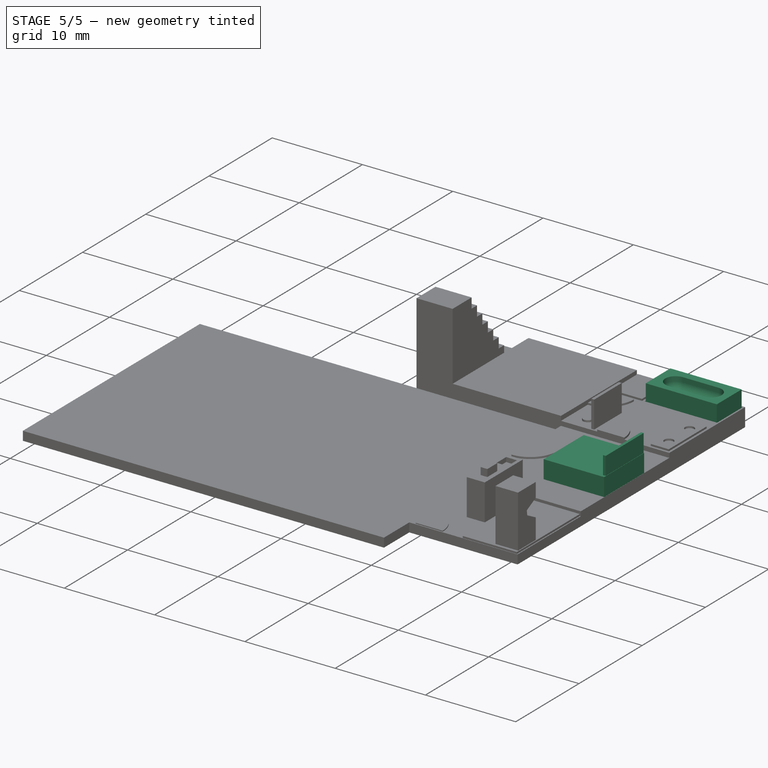
[diagram: stage 5 of 5 — iso view after this stage's code; geometry added in this stage tinted green]
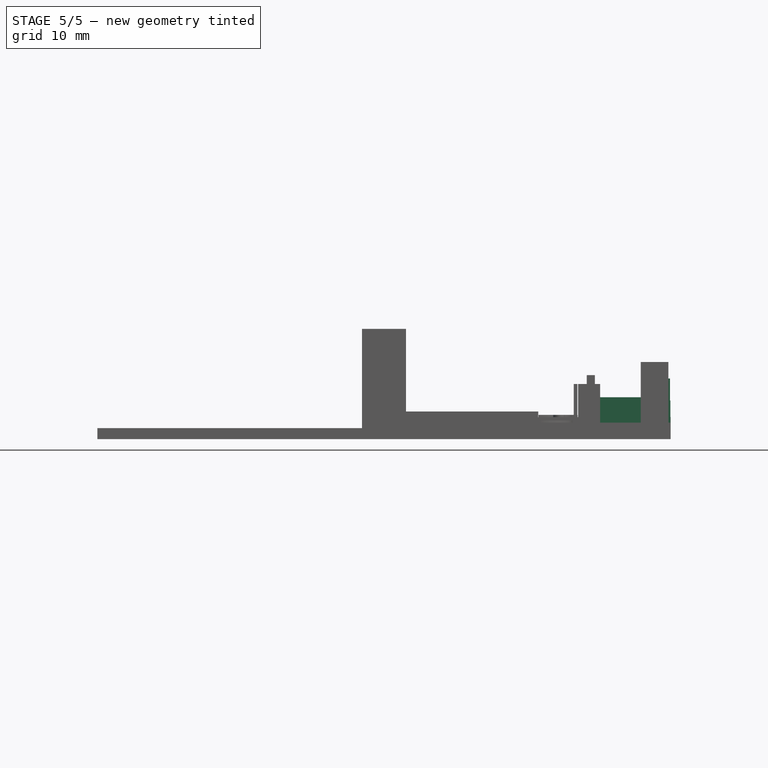
[diagram: stage 5 of 5 — front view after this stage's code; geometry added in this stage tinted green]
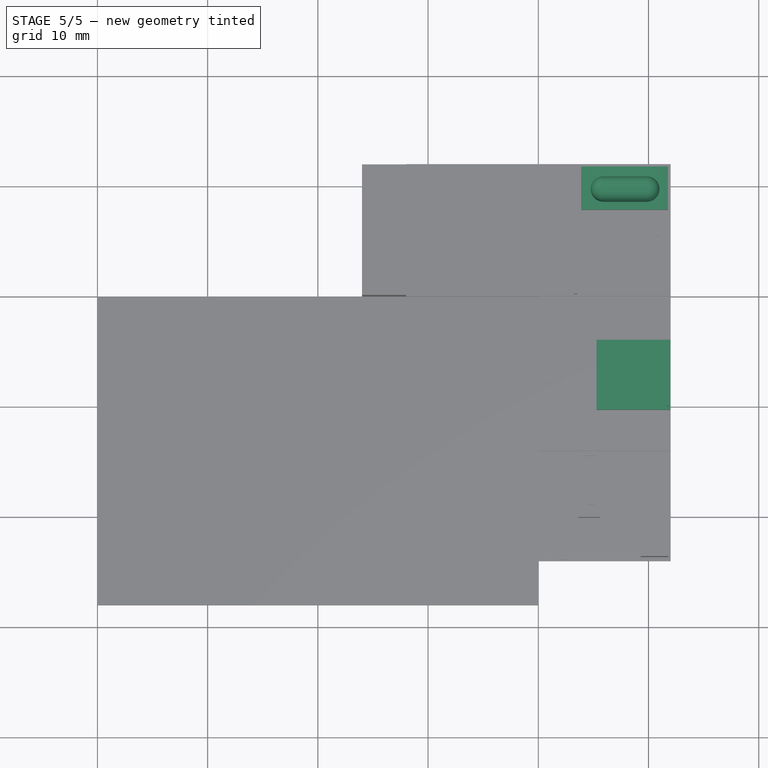
[diagram: stage 5 of 5 — top view after this stage's code; geometry added in this stage tinted green]
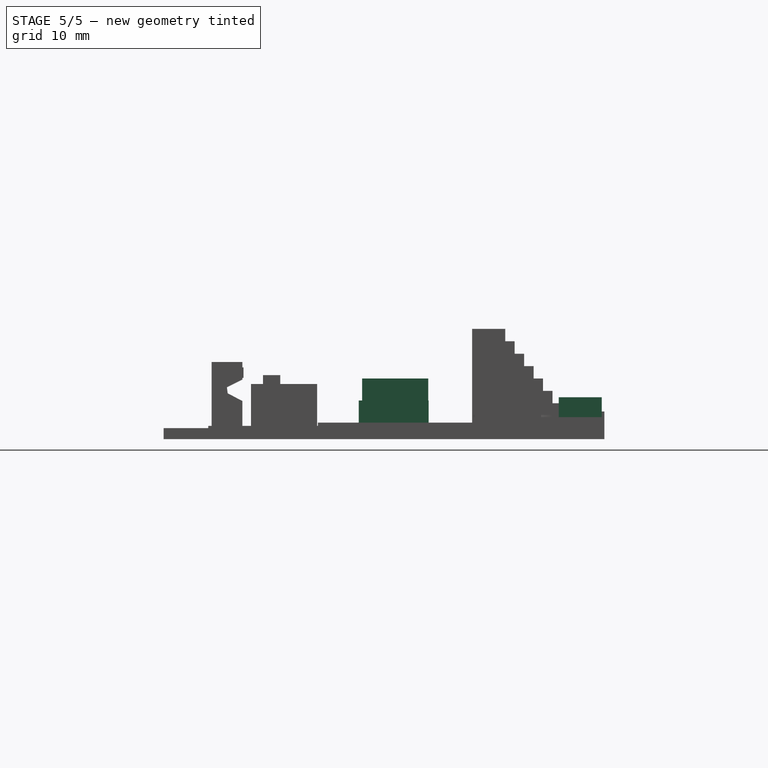
[diagram: stage 5 of 5 — right view after this stage's code; geometry added in this stage tinted green]
FEATURE [Sketcher::SketchObject] Sketch024
  FullyConstrained = false
  MapMode = 5
  Placement = pos=(0,0,1.5) rot=(0,0,1;0rad)
  Support = -> [Pocket005]
  sketch-geometry (4):
    g0: LineSegment StartX=5.28126 StartY=-3.95541 StartZ=0 EndX=11.9813 EndY=-3.95541 EndZ=0
    g1: LineSegment StartX=11.9813 StartY=-3.95541 StartZ=0 EndX=11.9813 EndY=-10.2854 EndZ=0
    g2: LineSegment StartX=11.9813 StartY=-10.2854 StartZ=0 EndX=5.28126 EndY=-10.2854 EndZ=0
    g3: LineSegment StartX=5.28126 StartY=-10.2854 StartZ=0 EndX=5.28126 EndY=-3.95541 EndZ=0
  constraints (10):
    c: Coincident(g0,g1)
    c: Coincident(g1,g2)
    c: Coincident(g2,g3)
    c: Coincident(g3,g0)
    c: Horizontal(g0)
    c: Horizontal(g2)
    c: Vertical(g1)
    c: Vertical(g3)
    c: Distance(g0) = 6.7
    c: Distance(g3) = 6.33
FEATURE [PartDesign::Pad] Pad017
  BaseFeature = -> Pocket005
  Direction = (1,1,1)
  Length = 2
  Length2 = 100
  Profile = -> Sketch024
  Type = 0
FEATURE [Sketcher::SketchObject] Sketch025
  FullyConstrained = false
  MapMode = 5
  Placement = pos=(0,0,3.5) rot=(0,0,1;0rad)
  Support = -> [Pad017]
  sketch-geometry (4):
    g0: LineSegment StartX=11.6508 StartY=-3.9835 StartZ=0 EndX=11.9508 EndY=-3.9835 EndZ=0
    g1: LineSegment StartX=11.9508 StartY=-3.9835 StartZ=0 EndX=11.9508 EndY=-9.9835 EndZ=0
    g2: LineSegment StartX=11.9508 StartY=-9.9835 StartZ=0 EndX=11.6508 EndY=-9.9835 EndZ=0
    g3: LineSegment StartX=11.6508 StartY=-9.9835 StartZ=0 EndX=11.6508 EndY=-3.9835 EndZ=0
  constraints (10):
    c: Coincident(g0,g1)
    c: Coincident(g1,g2)
    c: Coincident(g2,g3)
    c: Coincident(g3,g0)
    c: Horizontal(g0)
    c: Horizontal(g2)
    c: Vertical(g1)
    c: Vertical(g3)
    c: Distance(g1,g0) = 6
    c: Distance(g0) = 0.3
FEATURE [PartDesign::Pad] Pad018
  BaseFeature = -> Pad017
  Direction = (1,1,1)
  Length = 2
  Length2 = 100
  Profile = -> Sketch025
  Type = 0
FEATURE [Sketcher::SketchObject] Sketch026
  FullyConstrained = false
  MapMode = 5
  Placement = pos=(0,0,1.8) rot=(0,0,1;0rad)
  Support = -> [Pad018]
  sketch-geometry (4):
    g0: LineSegment StartX=3.885 StartY=11.7616 StartZ=0 EndX=11.7672 EndY=11.7616 EndZ=0
    g1: LineSegment StartX=11.7672 StartY=11.7616 StartZ=0 EndX=11.7672 EndY=7.85434 EndZ=0
    g2: LineSegment StartX=11.7672 StartY=7.85434 StartZ=0 EndX=3.885 EndY=7.85434 EndZ=0
    g3: LineSegment StartX=3.885 StartY=7.85434 StartZ=0 EndX=3.885 EndY=11.7616 EndZ=0
  constraints (8):
    c: Coincident(g0,g1)
    c: Coincident(g1,g2)
    c: Coincident(g2,g3)
    c: Coincident(g3,g0)
    c: Horizontal(g0)
    c: Horizontal(g2)
    c: Vertical(g1)
    c: Vertical(g3)
FEATURE [PartDesign::Pad] Pad019
  BaseFeature = -> Pad018
  Direction = (1,1,1)
  Length = 2
  Length2 = 100
  Profile = -> Sketch026
  Type = 0
FEATURE [Sketcher::SketchObject] Sketch027
  FullyConstrained = false
  MapMode = 5
  Placement = pos=(0,0,3.8) rot=(0,0,1;0rad)
  Support = -> [Pad019]
  sketch-geometry (4):
    g0: ArcOfCircle CenterX=5.90354 CenterY=9.71119 CenterZ=0 NormalX=0 NormalY=0 NormalZ=1 AngleXU=0 Radius=1.14931 StartAngle=1.5708 EndAngle=4.71239
    g1: ArcOfCircle CenterX=9.84376 CenterY=9.71119 CenterZ=0 NormalX=0 NormalY=0 NormalZ=1 AngleXU=0 Radius=1.14931 StartAngle=4.71239 EndAngle=7.85398
    g2: LineSegment StartX=5.90354 StartY=8.56188 StartZ=0 EndX=9.84376 EndY=8.56188 EndZ=0
    g3: LineSegment StartX=5.90354 StartY=10.8605 StartZ=0 EndX=9.84376 EndY=10.8605 EndZ=0
  constraints (6):
    c: Tangent(g0,g3) = 1.5708
    c: Tangent(g0,g2) = -1.5708
    c: Tangent(g2,g1) = -1.5708
    c: Tangent(g3,g1) = 1.5708
    c: Horizontal(g2)
    c: Equal(g0,g1)
FEATURE [PartDesign::Pocket] Pocket006
  BaseFeature = -> Pad019
  Length = 1.5
  Length2 = 100
  Profile = -> Sketch027
  Type = 0
FEATURE [PartDesign::Fillet] Fillet
  Base = -> Pocket006 [Edge360]
  BaseFeature = -> Pocket006
  Radius = 1
  SupportTransform = false
FEATURE [PartDesign::Pad] Pad020
  BaseFeature = -> Fillet
  Direction = (1,1,1)
  Length = 0.1
  Length2 = 100
  Profile = -> Sketch017
  Type = 0
FEATURE [PartDesign::Body] Body
  Group = -> [Sketch,Pad,Sketch001,Pad001,Sketch002,Pad002,Sketch003,Pad003,Sketch004,Pad004,Sketch005,Pocket,Sketch006,Pad005,Sketch007,Pad006,Sketch008,Pocket001,Sketch009,Pad007,Sketch010,Pad008,Sketch011,Pad009,Sketch012,Pad010,Sketch013,Pad011,Sketch014,Pad012,Sketch015,Pad013,Sketch016,Pad014,Sketch017,Sketch018,Pocket002,Sketch019,Pocket003,Sketch020,Pad015,Sketch021,Pad016,Sketch022,Pocket004,Sketch023,+11 more]
  Origin = -> Origin
  Tip = -> Pad020
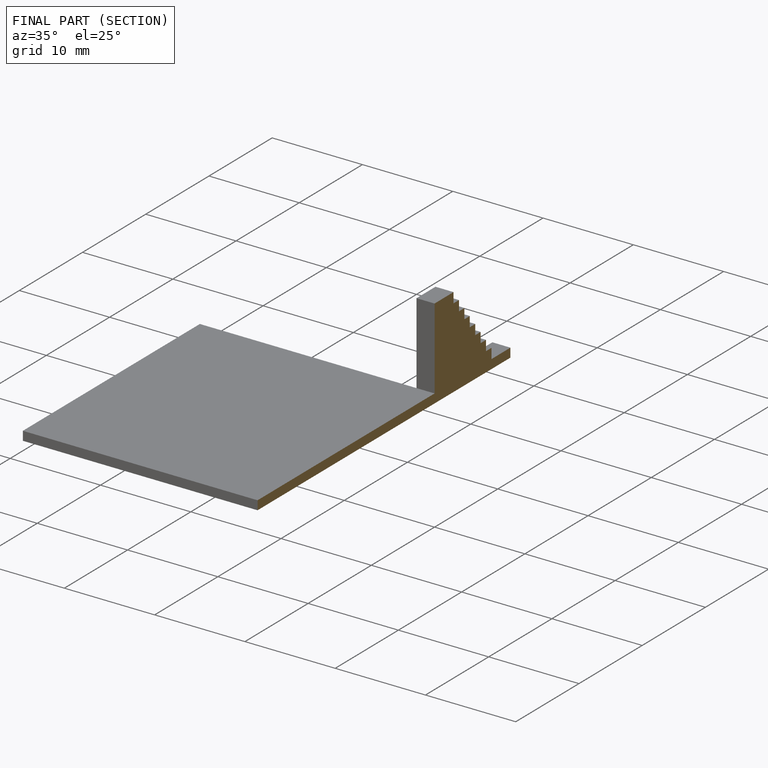
[diagram: finished part — half-section view (interior)]
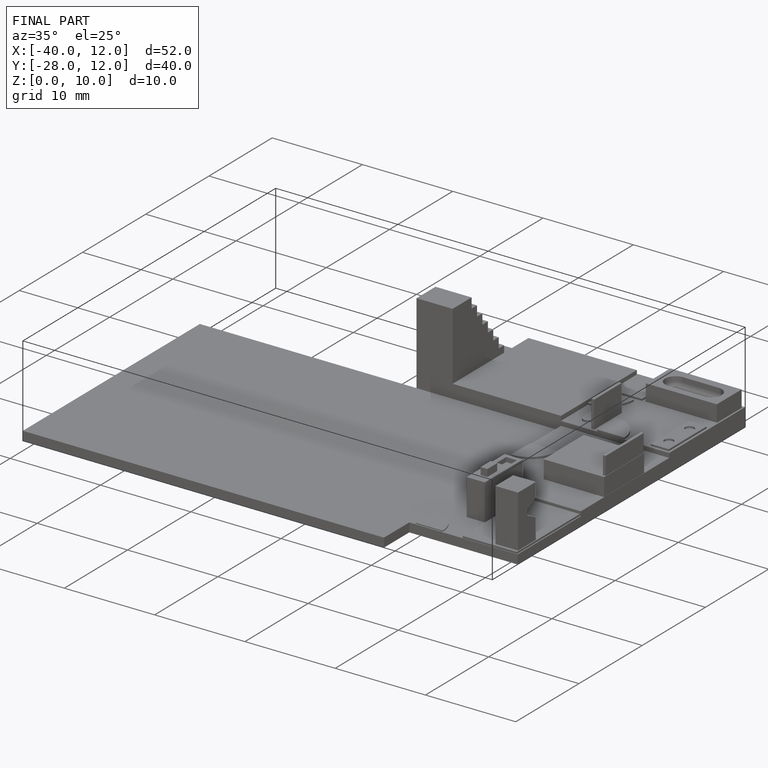
[diagram: finished part — iso view with bounding-box wireframe]
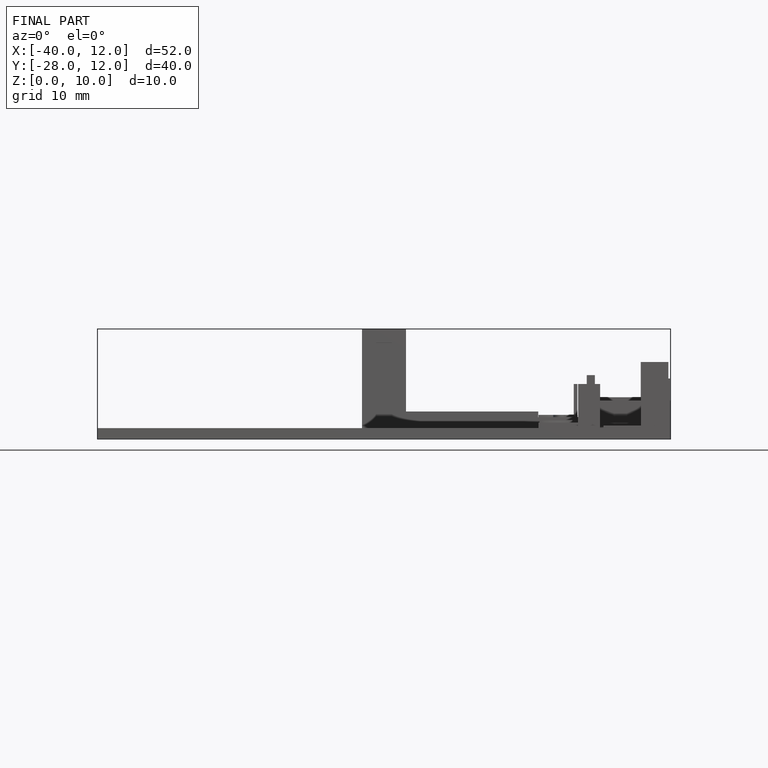
[diagram: finished part — front view with bounding-box wireframe]
